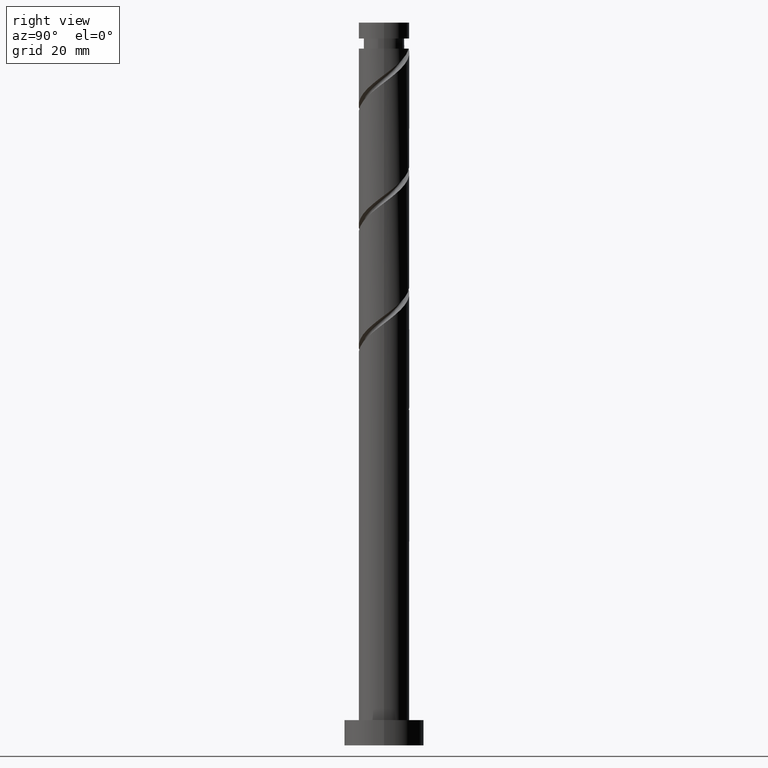
[diagram: clean part render]
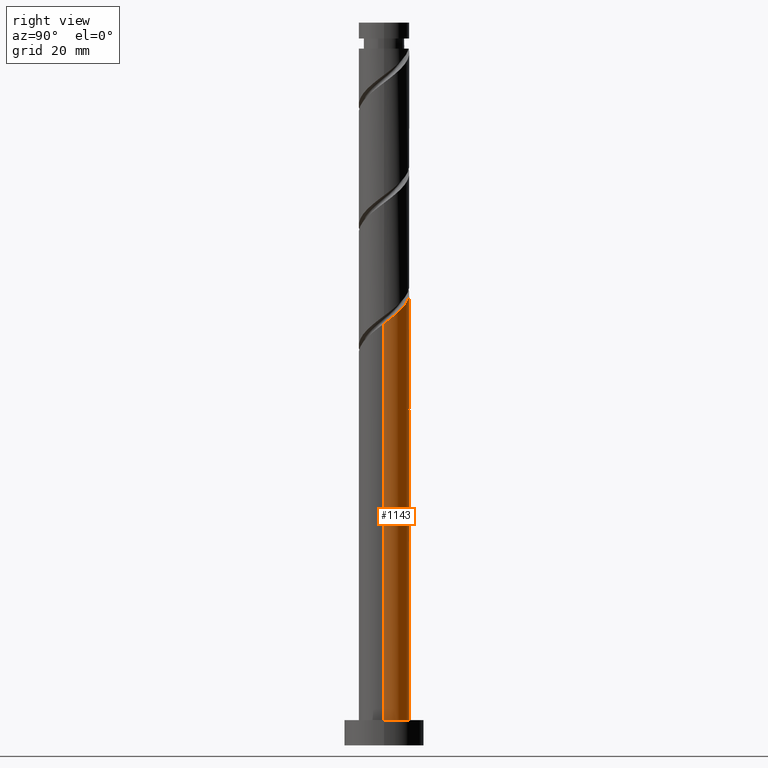
[diagram: same view with one face highlighted and labeled with its STEP entity id]
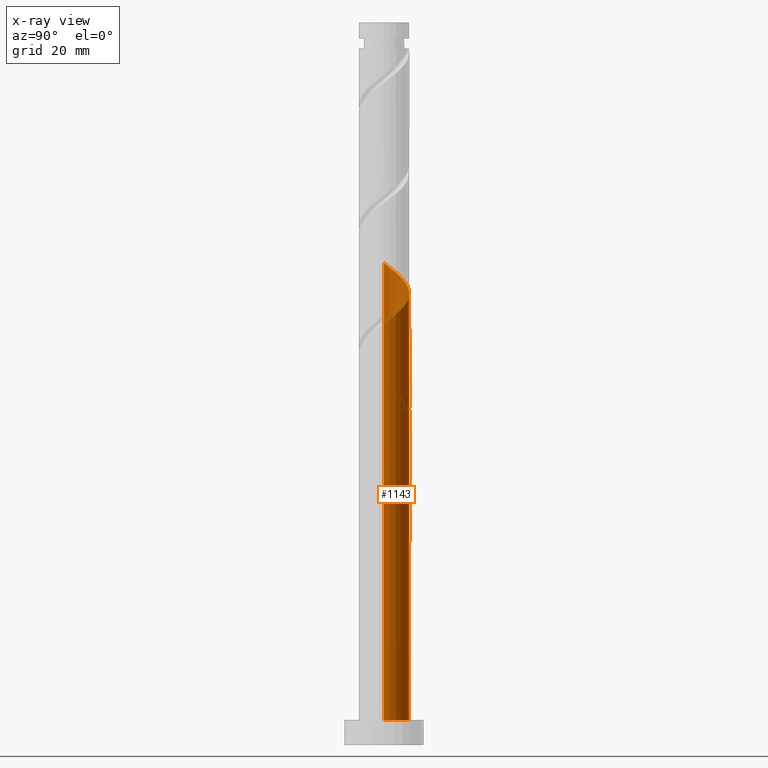
[diagram: x-ray of the same camera — body ghosted, the highlighted face saturated]
A machine part, right view. The second image highlights one B-rep face of the part: STEP entity #1143.
The next image is the same camera in x-ray: the body ghosted, the highlighted face saturated — about 0% of this face is hidden behind the body in this view.
In plain terms, the highlighted cylindrical surface (edge-blend (fillet) strip) has radius 7 mm, axis along (-0, -0, -1).
Its self-contained STEP definition (entity closure, byte-faithful):
#47 = CARTESIAN_POINT ( 'NONE',  ( 7.000000000000000888, 8.572527594031474176E-16, 7.000000000000000000 ) ) ;
#60 = EDGE_CURVE ( 'NONE', #1440, #883, #1313, .T. ) ;
#62 = CARTESIAN_POINT ( 'NONE',  ( -3.945914127944260219, 5.854831194903829861, 94.87669873231091344 ) ) ;
#67 = CARTESIAN_POINT ( 'NONE',  ( -7.000000000000001776, 0.7035264706814544633, 101.6568390183317234 ) ) ;
#69 = EDGE_CURVE ( 'NONE', #763, #559, #606, .T. ) ;
#74 = CARTESIAN_POINT ( 'NONE',  ( -7.000000000000000888, 8.015228461780444237E-15, 102.1902653875210092 ) ) ;
#86 = CARTESIAN_POINT ( 'NONE',  ( 6.676610386371576666, 2.296118545398805111, 118.4878098434220419 ) ) ;
#93 = DIRECTION ( 'NONE',  ( -0.000000000000000000, -0.000000000000000000, -1.000000000000000000 ) ) ;
#101 = CARTESIAN_POINT ( 'NONE',  ( 7.000000000000011546, 4.486135333086043795E-16, 116.7297987437675602 ) ) ;
#126 = EDGE_CURVE ( 'NONE', #738, #763, #713, .T. ) ;
#147 = LINE ( 'NONE', #1613, #1147 ) ;
#153 = EDGE_CURVE ( 'NONE', #738, #883, #1229, .T. ) ;
#175 = ORIENTED_EDGE ( 'NONE', *, *, #1254, .T. ) ;
#188 = CARTESIAN_POINT ( 'NONE',  ( -0.4299809621350546562, 6.986781546048323577, 94.18225428786648479 ) ) ;
#213 = CARTESIAN_POINT ( 'NONE',  ( -5.854831194903820979, 3.945914127944254890, 99.04336539897758485 ) ) ;
#217 = CARTESIAN_POINT ( 'NONE',  ( 6.860000000000008313, 1.392982411949269528, 117.7933653989775991 ) ) ;
#240 = CARTESIAN_POINT ( 'NONE',  ( 5.244443063986624409, 4.636358155772987821, 120.5711431767553705 ) ) ;
#250 = CARTESIAN_POINT ( 'NONE',  ( -5.835739828502645388, 3.865765209376801348, 130.2933653989775564 ) ) ;
#258 = DIRECTION ( 'NONE',  ( -0.000000000000000000, -0.000000000000000000, -1.000000000000000000 ) ) ;
#311 = CARTESIAN_POINT ( 'NONE',  ( 0.4898462784997342778, 7.043389613628434631, 93.48780984342198508 ) ) ;
#320 = CARTESIAN_POINT ( 'NONE',  ( -5.244443063986614639, 4.636358155772991374, 98.34892095453314198 ) ) ;
#332 = CARTESIAN_POINT ( 'NONE',  ( -7.000000000000010658, -4.725395884183966564E-15, 133.3964654104341889 ) ) ;
#334 = CARTESIAN_POINT ( 'NONE',  ( 1.392982411949271970, 6.860000000000002096, 92.79336539897758485 ) ) ;
#338 = CARTESIAN_POINT ( 'NONE',  ( -3.865765209376795575, 5.835739828502638282, 96.96003206564425625 ) ) ;
#363 = CARTESIAN_POINT ( 'NONE',  ( 5.854831194903831637, 3.945914127944256666, 119.8766987323109277 ) ) ;
#380 = CARTESIAN_POINT ( 'NONE',  ( -7.000000000000010658, -4.725395884183966564E-15, 133.3964654104341889 ) ) ;
#407 = CARTESIAN_POINT ( 'NONE',  ( 1.392982411949271970, 6.860000000000002096, 92.79336539897758485 ) ) ;
#420 = DIRECTION ( 'NONE',  ( 1.000000000000000000, 0.000000000000000000, 0.000000000000000000 ) ) ;
#442 = VERTEX_POINT ( 'NONE', #332 ) ;
#447 = CARTESIAN_POINT ( 'NONE',  ( -7.000000000000000888, 8.015228461780444237E-15, 102.1902653875210092 ) ) ;
#469 = AXIS2_PLACEMENT_3D ( 'NONE', #637, #506, #1583 ) ;
#487 = ORIENTED_EDGE ( 'NONE', *, *, #69, .F. ) ;
#488 = CARTESIAN_POINT ( 'NONE',  ( -5.326802183601727414, 4.634054933069416293, 129.5989209545331278 ) ) ;
#496 = CARTESIAN_POINT ( 'NONE',  ( 2.223641844227019160, 6.637425475935890162, 123.3489209545331136 ) ) ;
#500 = CARTESIAN_POINT ( 'NONE',  ( -6.986781546048331570, 0.4299809621350577094, 99.73780984342201350 ) ) ;
#503 = CARTESIAN_POINT ( 'NONE',  ( 0.4299809621350618172, 6.986781546048335123, 124.7378098434220277 ) ) ;
#506 = DIRECTION ( 'NONE',  ( 0.000000000000000000, -9.912705577010320619E-15, -1.000000000000000000 ) ) ;
#511 = EDGE_CURVE ( 'NONE', #955, #442, #964, .T. ) ;
#517 = CARTESIAN_POINT ( 'NONE',  ( -6.930173478468224069, 1.349808202769846810, 99.04336539897762748 ) ) ;
#544 = CYLINDRICAL_SURFACE ( 'NONE', #703, 7.000000000000000888 ) ;
#557 = AXIS2_PLACEMENT_3D ( 'NONE', #931, #1346, #420 ) ;
#559 = VERTEX_POINT ( 'NONE', #1453 ) ;
#561 = ORIENTED_EDGE ( 'NONE', *, *, #511, .F. ) ;
#589 = CARTESIAN_POINT ( 'NONE',  ( -7.000000000000000888, 0.000000000000000000, 200.0000000000000000 ) ) ;
#598 = CARTESIAN_POINT ( 'NONE',  ( -4.636358155772993150, 5.244443063986621745, 95.57114317675535631 ) ) ;
#606 = LINE ( 'NONE', #589, #1352 ) ;
#611 = CARTESIAN_POINT ( 'NONE',  ( -3.097475485684180185, 6.344677473403554480, 96.26558762119978496 ) ) ;
#621 = ORIENTED_EDGE ( 'NONE', *, *, #754, .F. ) ;
#633 = CARTESIAN_POINT ( 'NONE',  ( -0.4898462784997270059, 7.043389613628446178, 125.4322542878664990 ) ) ;
#637 = CARTESIAN_POINT ( 'NONE',  ( 0.000000000000000000, 0.000000000000000000, 92.79336539897765590 ) ) ;
#643 = CARTESIAN_POINT ( 'NONE',  ( 1.349808202769851029, 6.930173478468224069, 124.0433653989775848 ) ) ;
#681 = CARTESIAN_POINT ( 'NONE',  ( -7.000000000000010658, -4.725395884183966564E-15, 100.0631320771008745 ) ) ;
#687 = ORIENTED_EDGE ( 'NONE', *, *, #1635, .T. ) ;
#700 = DIRECTION ( 'NONE',  ( -1.000000000000000000, 0.000000000000000000, 0.000000000000000000 ) ) ;
#703 = AXIS2_PLACEMENT_3D ( 'NONE', #1101, #1511, #700 ) ;
#713 =( BOUNDED_CURVE ( )  B_SPLINE_CURVE ( 2, ( #729, #1002, #1540, #62, #598, #1676, #1009, #873, #1410, #517, #500, #1057, #924 ),
 .UNSPECIFIED., .F., .T. ) 
 B_SPLINE_CURVE_WITH_KNOTS ( ( 3, 2, 2, 2, 2, 2, 3 ),
 ( 0.000000000000000000, 0.01041666666666662966, 0.02083333333333337034, 0.03125000000000000000, 0.04166666666666662966, 0.05208333333333336340, 0.05453176698144644036 ),
 .UNSPECIFIED. ) 
 CURVE ( )  GEOMETRIC_REPRESENTATION_ITEM ( )  RATIONAL_B_SPLINE_CURVE ( ( 0.9090909090909207180, 0.9013135103398389747, 0.9090909090909207180, 0.9013135103398389747, 0.9090909090909207180, 0.9013135103398389747, 0.9090909090909207180, 0.9013135103398389747, 0.9090909090909207180, 0.9013135103398389747, 0.9090909090909207180, 0.9072628343904143300, 0.9062941362546408364 ) ) 
 REPRESENTATION_ITEM ( '' )  );
#729 = CARTESIAN_POINT ( 'NONE',  ( -1.392982411949269084, 6.860000000000008313, 92.79336539897758485 ) ) ;
#738 = VERTEX_POINT ( 'NONE', #1746 ) ;
#754 = EDGE_CURVE ( 'NONE', #442, #1440, #147, .T. ) ;
#763 = VERTEX_POINT ( 'NONE', #681 ) ;
#786 = LINE ( 'NONE', #1452, #1685 ) ;
#787 = CARTESIAN_POINT ( 'NONE',  ( -3.121016336671533775, 6.265720790637701931, 127.5155876211997708 ) ) ;
#859 = CARTESIAN_POINT ( 'NONE',  ( -1.349808202769843701, 6.930173478468212522, 94.87669873231088502 ) ) ;
#865 = CARTESIAN_POINT ( 'NONE',  ( -6.676610386371562456, 2.296118545398806443, 100.4322542878664706 ) ) ;
#873 = CARTESIAN_POINT ( 'NONE',  ( -6.344677473403563361, 3.097475485684186847, 97.65447651008872754 ) ) ;
#883 = VERTEX_POINT ( 'NONE', #407 ) ;
#888 = CARTESIAN_POINT ( 'NONE',  ( -4.634054933069408300, 5.326802183601719420, 97.65447651008869911 ) ) ;
#919 = CARTESIAN_POINT ( 'NONE',  ( -6.344677473403563361, 3.097475485684186847, 130.9878098434220703 ) ) ;
#924 = CARTESIAN_POINT ( 'NONE',  ( -7.000000000000010658, -4.725395884183966564E-15, 100.0631320771008745 ) ) ;
#931 = CARTESIAN_POINT ( 'NONE',  ( 0.000000000000000000, 0.000000000000000000, 7.000000000000000000 ) ) ;
#950 = FACE_OUTER_BOUND ( 'NONE', #994, .T. ) ;
#955 = VERTEX_POINT ( 'NONE', #1161 ) ;
#964 =( BOUNDED_CURVE ( )  B_SPLINE_CURVE ( 2, ( #101, #1159, #217, #86, #1037, #363, #240, #1175, #1167, #1324, #496, #643, #503, #633, #1473, #1703, #787, #1710, #1184, #488, #250, #919, #1047, #1572, #1580, #1054, #380 ),
 .UNSPECIFIED., .F., .T. ) 
 B_SPLINE_CURVE_WITH_KNOTS ( ( 3, 2, 2, 2, 2, 2, 2, 2, 2, 2, 2, 2, 2, 3 ),
 ( 0.1795317669814464057, 0.1875000000000000000, 0.1979166666666666297, 0.2083333333333333703, 0.2187500000000000000, 0.2291666666666666297, 0.2395833333333333703, 0.2500000000000000000, 0.2604166666666666297, 0.2708333333333333703, 0.2812500000000000000, 0.2916666666666666297, 0.3020833333333333703, 0.3045317669814463502 ),
 .UNSPECIFIED. ) 
 CURVE ( )  GEOMETRIC_REPRESENTATION_ITEM ( )  RATIONAL_B_SPLINE_CURVE ( ( 0.9062941362546409474, 0.9031415850403452517, 0.9090909090909207180, 0.9013135103398389747, 0.9090909090909207180, 0.9013135103398389747, 0.9090909090909207180, 0.9013135103398389747, 0.9090909090909207180, 0.9013135103398389747, 0.9090909090909207180, 0.9013135103398389747, 0.9090909090909207180, 0.9013135103398389747, 0.9090909090909207180, 0.9013135103398389747, 0.9090909090909207180, 0.9013135103398389747, 0.9090909090909207180, 0.9013135103398389747, 0.9090909090909207180, 0.9013135103398389747, 0.9090909090909207180, 0.9013135103398389747, 0.9090909090909207180, 0.9072628343904143300, 0.9062941362546408364 ) ) 
 REPRESENTATION_ITEM ( '' )  );
#994 = EDGE_LOOP ( 'NONE', ( #561, #687, #175, #487, #1090, #1105, #1677, #621 ) ) ;
#1002 = CARTESIAN_POINT ( 'NONE',  ( -2.296118545398807775, 6.676610386371574002, 93.48780984342202771 ) ) ;
#1009 = CARTESIAN_POINT ( 'NONE',  ( -5.835739828502645388, 3.865765209376801348, 96.96003206564422783 ) ) ;
#1037 = CARTESIAN_POINT ( 'NONE',  ( 6.265720790637704596, 3.121016336671531555, 119.1822542878664706 ) ) ;
#1047 = CARTESIAN_POINT ( 'NONE',  ( -6.637425475935891939, 2.223641844227016495, 131.6822542878664422 ) ) ;
#1054 = CARTESIAN_POINT ( 'NONE',  ( -7.000000000000008882, 0.2151936616037123107, 133.2333017224060256 ) ) ;
#1057 = CARTESIAN_POINT ( 'NONE',  ( -7.000000000000010658, 0.2151936616037043171, 99.89996838907271126 ) ) ;
#1069 = CIRCLE ( 'NONE', #557, 7.000000000000000888 ) ;
#1090 = ORIENTED_EDGE ( 'NONE', *, *, #126, .F. ) ;
#1101 = CARTESIAN_POINT ( 'NONE',  ( 0.000000000000000000, 0.000000000000000000, 200.0000000000000000 ) ) ;
#1105 = ORIENTED_EDGE ( 'NONE', *, *, #153, .T. ) ;
#1143 = ADVANCED_FACE ( 'NONE', ( #950 ), #544, .T. ) ;
#1147 = VECTOR ( 'NONE', #258, 1000.000000000000000 ) ;
#1159 = CARTESIAN_POINT ( 'NONE',  ( 7.000000000000010658, 0.7035264706814527980, 117.2632251129567891 ) ) ;
#1161 = CARTESIAN_POINT ( 'NONE',  ( 7.000000000000011546, 4.486135333086043795E-16, 116.7297987437675459 ) ) ;
#1167 = CARTESIAN_POINT ( 'NONE',  ( 3.865765209376801792, 5.835739828502643611, 121.9600320656442705 ) ) ;
#1175 = CARTESIAN_POINT ( 'NONE',  ( 4.634054933069419846, 5.326802183601722085, 121.2655876211998134 ) ) ;
#1184 = CARTESIAN_POINT ( 'NONE',  ( -4.636358155772993150, 5.244443063986621745, 128.9044765100886707 ) ) ;
#1229 = CIRCLE ( 'NONE', #469, 7.000000000000000888 ) ;
#1254 = EDGE_CURVE ( 'NONE', #1412, #559, #1069, .T. ) ;
#1277 = CARTESIAN_POINT ( 'NONE',  ( -6.265720790637692161, 3.121016336671531555, 99.73780984342204192 ) ) ;
#1313 =( BOUNDED_CURVE ( )  B_SPLINE_CURVE ( 2, ( #74, #67, #1423, #865, #1277, #213, #320, #888, #338, #611, #1401, #859, #188, #311, #334 ),
 .UNSPECIFIED., .F., .T. ) 
 B_SPLINE_CURVE_WITH_KNOTS ( ( 3, 2, 2, 2, 2, 2, 2, 3 ),
 ( 0.9295317669814463502, 0.9375000000000000000, 0.9479166666666666297, 0.9583333333333333703, 0.9687500000000000000, 0.9791666666666666297, 0.9895833333333333703, 1.000000000000000000 ),
 .UNSPECIFIED. ) 
 CURVE ( )  GEOMETRIC_REPRESENTATION_ITEM ( )  RATIONAL_B_SPLINE_CURVE ( ( 0.9062941362546357293, 0.9031415850403401446, 0.9090909090909153889, 0.9013135103398340897, 0.9090909090909153889, 0.9013135103398340897, 0.9090909090909153889, 0.9013135103398340897, 0.9090909090909153889, 0.9013135103398340897, 0.9090909090909153889, 0.9013135103398340897, 0.9090909090909153889, 0.9013135103398340897, 0.9090909090909153889 ) ) 
 REPRESENTATION_ITEM ( '' )  );
#1324 = CARTESIAN_POINT ( 'NONE',  ( 3.097475485684188623, 6.344677473403562473, 122.6544765100887275 ) ) ;
#1346 = DIRECTION ( 'NONE',  ( 0.000000000000000000, 0.000000000000000000, 1.000000000000000000 ) ) ;
#1352 = VECTOR ( 'NONE', #1397, 1000.000000000000000 ) ;
#1397 = DIRECTION ( 'NONE',  ( -0.000000000000000000, -0.000000000000000000, -1.000000000000000000 ) ) ;
#1401 = CARTESIAN_POINT ( 'NONE',  ( -2.223641844227011610, 6.637425475935885721, 95.57114317675537052 ) ) ;
#1410 = CARTESIAN_POINT ( 'NONE',  ( -6.637425475935891939, 2.223641844227016495, 98.34892095453312777 ) ) ;
#1412 = VERTEX_POINT ( 'NONE', #47 ) ;
#1423 = CARTESIAN_POINT ( 'NONE',  ( -6.860000000000002096, 1.392982411949270860, 101.1266987323109277 ) ) ;
#1440 = VERTEX_POINT ( 'NONE', #447 ) ;
#1452 = CARTESIAN_POINT ( 'NONE',  ( 7.000000000000000888, 8.572527594031474176E-16, 200.0000000000000000 ) ) ;
#1453 = CARTESIAN_POINT ( 'NONE',  ( -7.000000000000000888, 0.000000000000000000, 7.000000000000000000 ) ) ;
#1473 = CARTESIAN_POINT ( 'NONE',  ( -1.392982411949269306, 6.860000000000008313, 126.1266987323108850 ) ) ;
#1511 = DIRECTION ( 'NONE',  ( -0.000000000000000000, -0.000000000000000000, -1.000000000000000000 ) ) ;
#1540 = CARTESIAN_POINT ( 'NONE',  ( -3.121016336671533775, 6.265720790637701931, 94.18225428786644216 ) ) ;
#1572 = CARTESIAN_POINT ( 'NONE',  ( -6.930173478468224069, 1.349808202769846810, 132.3766987323109277 ) ) ;
#1580 = CARTESIAN_POINT ( 'NONE',  ( -6.986781546048331570, 0.4299809621350577094, 133.0711431767553279 ) ) ;
#1583 = DIRECTION ( 'NONE',  ( 0.000000000000000000, 1.000000000000000000, -9.912705577010325352E-15 ) ) ;
#1613 = CARTESIAN_POINT ( 'NONE',  ( -7.000000000000000888, 0.000000000000000000, 200.0000000000000000 ) ) ;
#1635 = EDGE_CURVE ( 'NONE', #955, #1412, #786, .T. ) ;
#1676 = CARTESIAN_POINT ( 'NONE',  ( -5.326802183601727414, 4.634054933069416293, 96.26558762119982759 ) ) ;
#1677 = ORIENTED_EDGE ( 'NONE', *, *, #60, .F. ) ;
#1685 = VECTOR ( 'NONE', #93, 1000.000000000000000 ) ;
#1703 = CARTESIAN_POINT ( 'NONE',  ( -2.296118545398807775, 6.676610386371574002, 126.8211431767553563 ) ) ;
#1710 = CARTESIAN_POINT ( 'NONE',  ( -3.945914127944260219, 5.854831194903829861, 128.2100320656442705 ) ) ;
#1746 = CARTESIAN_POINT ( 'NONE',  ( -1.392982411949269084, 6.860000000000008313, 92.79336539897758485 ) ) ;